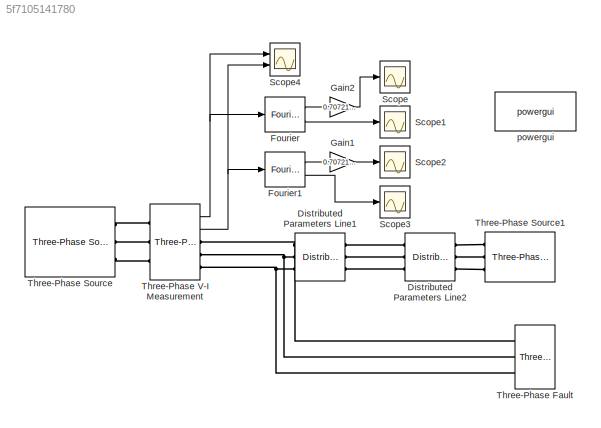
MODEL slx_5f7105141780
KIND model
CONFIG AbsTol = auto
CONFIG EnableMultiTasking = off
CONFIG FixedStep = auto
CONFIG MaxStep = auto
CONFIG MinStep = auto
CONFIG RelTol = 1e-6
CONFIG SampleTimeConstraint = Unconstrained
CONFIG Solver = VariableStepAuto
CONFIG SolverName = VariableStepAuto
CONFIG StartTime = 0.0
CONFIG StopTime = 1
BLOCK [Reference] Distributed Parameters Line1  REF=powerlib/Elements/Distributed Parameters Line
  Ports = [0, 0, 0, 0, 0, 3, 3]
  SourceBlock = powerlib/Elements/Distributed Parameters Line
  SourceProductBaseCode = PS
  SourceProductName = Simscape Power Systems
  SourceType = Distributed Parameters Line
BLOCK [Reference] Distributed Parameters Line2  REF=powerlib/Elements/Distributed Parameters Line
  Ports = [0, 0, 0, 0, 0, 3, 3]
  SourceBlock = powerlib/Elements/Distributed Parameters Line
  SourceProductBaseCode = PS
  SourceProductName = Simscape Power Systems
  SourceType = Distributed Parameters Line
BLOCK [Reference] Fourier  REF=powerlib_meascontrol/Measurements/Fourier
  Ports = [1, 2]
  SourceBlock = powerlib_meascontrol/Measurements/Fourier
  SourceProductBaseCode = PS
  SourceProductName = Simscape Power Systems
  SourceType = Fourier
BLOCK [Reference] Fourier1  REF=powerlib_meascontrol/Measurements/Fourier
  Ports = [1, 2]
  SourceBlock = powerlib_meascontrol/Measurements/Fourier
  SourceProductBaseCode = PS
  SourceProductName = Simscape Power Systems
  SourceType = Fourier
BLOCK [Gain] Gain1
  Gain = 0.7072135785007072
  OutDataTypeStr = Inherit: Inherit via internal rule
  ParamDataTypeStr = Inherit: Inherit via internal rule
  SaturateOnIntegerOverflow = off
BLOCK [Gain] Gain2
  Gain = 0.7072135785007072
  OutDataTypeStr = Inherit: Inherit via internal rule
  ParamDataTypeStr = Inherit: Inherit via internal rule
  SaturateOnIntegerOverflow = off
BLOCK [Scope] Scope
  Floating = off
  NumInputPorts = 1
  Ports = [1]
  ScopeSpecificationString = Simulink.scopes.TimeScopeBlockCfg('CurrentConfiguration', extmgr.ConfigurationSet(extmgr.Configuration('Core','General UI',true),extmgr.Configuration('Core','Source UI',true),extmgr.Configuration('Sources','WiredSimulink',true,'DataLoggingVariableName','Vm','DataLogging',true,'DataLoggingLimitDataPoints',true,'DataLoggingMaxPoints','200','DataLoggingSaveFormat','Array'),extmgr.Configuration('Visua...<+1603ch>
BLOCK [Scope] Scope1
  Floating = off
  NumInputPorts = 1
  Ports = [1]
  ScopeSpecificationString = Simulink.scopes.TimeScopeBlockCfg('CurrentConfiguration', extmgr.ConfigurationSet(extmgr.Configuration('Core','General UI',true),extmgr.Configuration('Core','Source UI',true),extmgr.Configuration('Sources','WiredSimulink',true,'DataLoggingVariableName','Vp','DataLogging',true,'DataLoggingLimitDataPoints',true,'DataLoggingMaxPoints','200','DataLoggingSaveFormat','Array'),extmgr.Configuration('Visua...<+1615ch>
BLOCK [Scope] Scope2
  Floating = off
  NumInputPorts = 1
  Ports = [1]
  ScopeSpecificationString = Simulink.scopes.TimeScopeBlockCfg('CurrentConfiguration', extmgr.ConfigurationSet(extmgr.Configuration('Core','General UI',true),extmgr.Configuration('Core','Source UI',true),extmgr.Configuration('Sources','WiredSimulink',true,'DataLoggingVariableName','Im','DataLogging',true,'DataLoggingLimitDataPoints',true,'DataLoggingMaxPoints','200','DataLoggingSaveFormat','Array'),extmgr.Configuration('Visua...<+1609ch>
BLOCK [Scope] Scope3
  Floating = off
  NumInputPorts = 1
  Ports = [1]
  ScopeSpecificationString = Simulink.scopes.TimeScopeBlockCfg('CurrentConfiguration', extmgr.ConfigurationSet(extmgr.Configuration('Core','General UI',true),extmgr.Configuration('Core','Source UI',true),extmgr.Configuration('Sources','WiredSimulink',true,'DataLoggingVariableName','Ip','DataLogging',true,'DataLoggingLimitDataPoints',true,'DataLoggingMaxPoints','200','DataLoggingSaveFormat','Array'),extmgr.Configuration('Visua...<+1615ch>
BLOCK [Scope] Scope4
  Floating = off
  NumInputPorts = 2
  Ports = [2]
  ScopeSpecificationString = Simulink.scopes.TimeScopeBlockCfg('CurrentConfiguration', extmgr.ConfigurationSet(extmgr.Configuration('Core','General UI',true),extmgr.Configuration('Core','Source UI',true),extmgr.Configuration('Sources','WiredSimulink',true,'DataLoggingVariableName','ScopeData4'),extmgr.Configuration('Visuals','Time Domain',true,'SerializedDisplays',{struct('MinYLimReal','-1.31253','MaxYLimReal','1.31392','YLab...<+2389ch>
BLOCK [Reference] Three-Phase Fault  REF=powerlib/Elements/Three-Phase Fault
  Ports = [0, 0, 0, 0, 0, 3]
  SourceBlock = powerlib/Elements/Three-Phase Fault
  SourceProductBaseCode = PS
  SourceProductName = Simscape Power Systems
  SourceType = Three-Phase Fault
BLOCK [Reference] Three-Phase Source  REF=powerlib/Electrical
Sources/Three-Phase Source
  Ports = [0, 0, 0, 0, 0, 0, 3]
  SourceBlock = powerlib/Electrical\nSources/Three-Phase Source
  SourceProductBaseCode = PS
  SourceProductName = Simscape Power Systems
  SourceType = Three-Phase Source
BLOCK [Reference] Three-Phase Source1  REF=powerlib/Electrical
Sources/Three-Phase Source
  Ports = [0, 0, 0, 0, 0, 0, 3]
  SourceBlock = powerlib/Electrical\nSources/Three-Phase Source
  SourceProductBaseCode = PS
  SourceProductName = Simscape Power Systems
  SourceType = Three-Phase Source
BLOCK [Reference] Three-Phase V-I Measurement  REF=powerlib/Measurements/Three-Phase
V-I Measurement
  Ports = [0, 2, 0, 0, 0, 3, 3]
  SourceBlock = powerlib/Measurements/Three-Phase\nV-I Measurement
  SourceProductBaseCode = PS
  SourceProductName = Simscape Power Systems
  SourceType = Three-Phase VI Measurement
BLOCK [Reference] powergui  REF=powerlib/powergui
  Ports = []
  Priority = 1
  SourceBlock = powerlib/powergui
  SourceProductBaseCode = PS
  SourceProductName = Simscape Power Systems
  SourceType = PSB option menu block
LINE Fourier1:1 -> Gain1:1
LINE Fourier1:2 -> Scope3:1
LINE Fourier:1 -> Gain2:1
LINE Fourier:2 -> Scope1:1
LINE Gain1:1 -> Scope2:1
LINE Gain2:1 -> Scope:1
NET Three-Phase V-I Measurement:1 -> Fourier:1, Scope4:1
NET Three-Phase V-I Measurement:2 -> Fourier1:1, Scope4:2
PNET net1: Distributed Parameters Line1:LConn1 -- Three-Phase Fault:LConn1 -- Three-Phase V-I Measurement:RConn1
PNET net2: Distributed Parameters Line1:LConn2 -- Three-Phase Fault:LConn2 -- Three-Phase V-I Measurement:RConn2
PNET net3: Distributed Parameters Line1:LConn3 -- Three-Phase Fault:LConn3 -- Three-Phase V-I Measurement:RConn3
PLINE Distributed Parameters Line1:RConn1 -- Distributed Parameters Line2:LConn1
PLINE Distributed Parameters Line1:RConn2 -- Distributed Parameters Line2:LConn2
PLINE Distributed Parameters Line1:RConn3 -- Distributed Parameters Line2:LConn3
PLINE Distributed Parameters Line2:RConn1 -- Three-Phase Source1:RConn1
PLINE Distributed Parameters Line2:RConn2 -- Three-Phase Source1:RConn2
PLINE Distributed Parameters Line2:RConn3 -- Three-Phase Source1:RConn3
PLINE Three-Phase Source:RConn1 -- Three-Phase V-I Measurement:LConn1
PLINE Three-Phase Source:RConn2 -- Three-Phase V-I Measurement:LConn2
PLINE Three-Phase Source:RConn3 -- Three-Phase V-I Measurement:LConn3
note: NET lines group one-source signal fan-out (src -> all destinations, sorted); 1:1 wires keep LINE; PNET lines group multi-terminal physical nets as a canonical sorted terminal list (undirected conserving connections); 2-terminal nets keep the pairwise PLINE form
